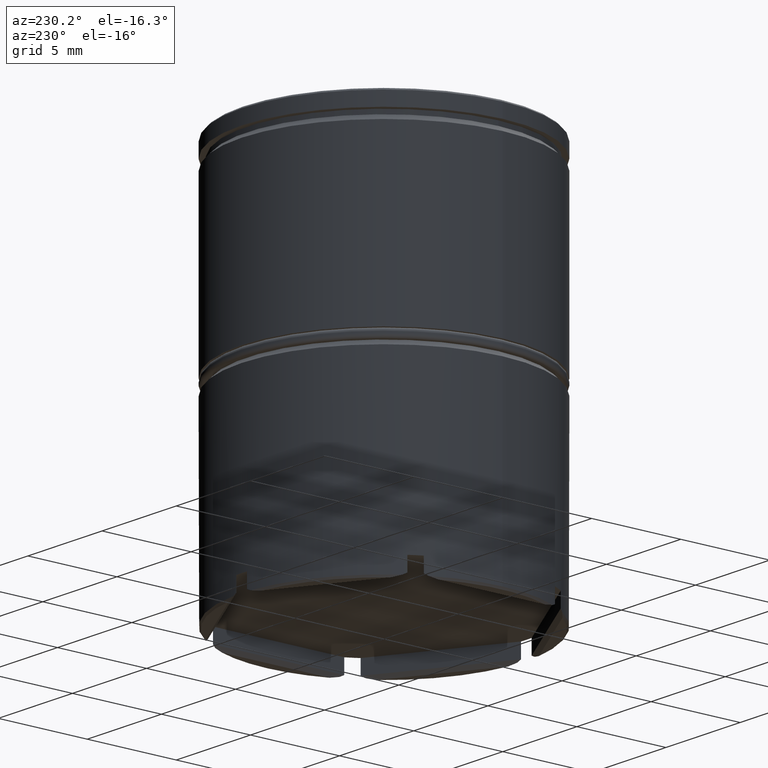
[diagram: clean part render]
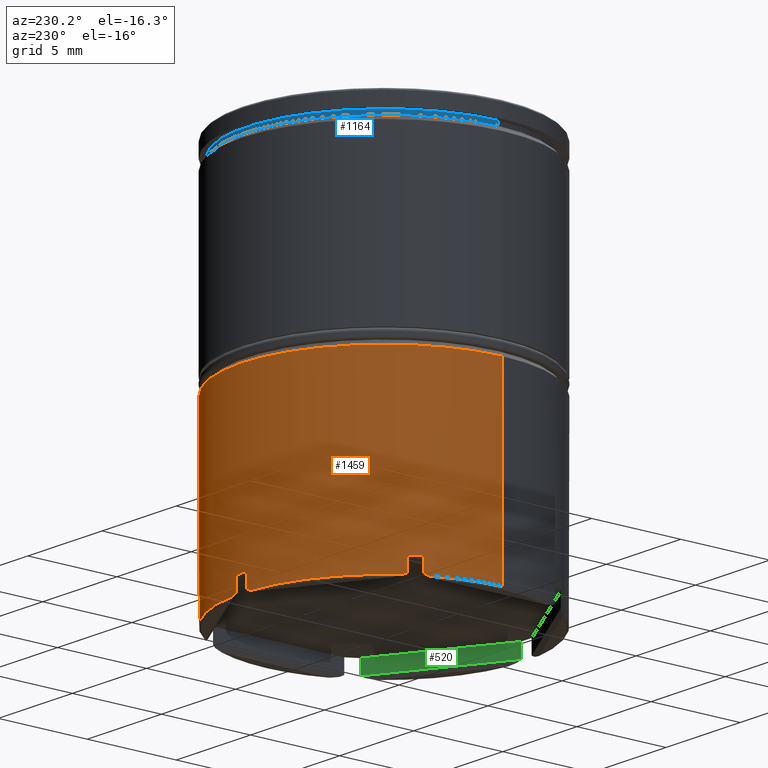
[diagram: same view with three faces highlighted in distinct colors, each labeled with its STEP entity id]
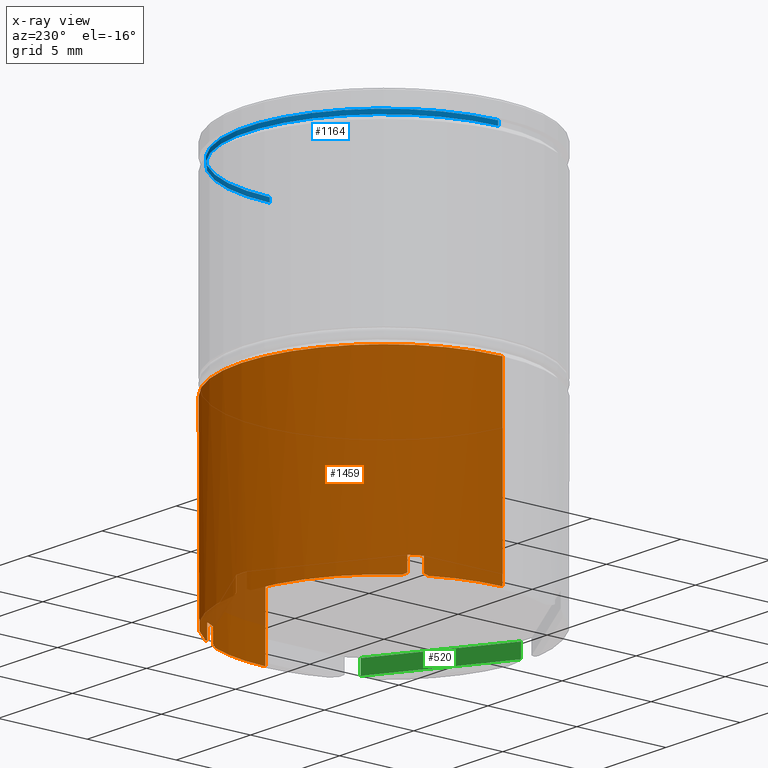
[diagram: x-ray of the same camera — body ghosted, the three highlighted faces saturated]
A machine part, auxiliary view with three faces highlighted in distinct colors.
The next image is the same camera in x-ray (body ghosted, the three faces saturated) — at least one of them is partly hidden behind the body in this view.
Their STEP definitions:

[orange] entity #1459 — the highlighted cylindrical surface (partial cylindrical patch) has radius 8 mm, axis along (-0, -0, 1).
#28 = CIRCLE ( 'NONE', #648, 8.000000000000000000 ) ;
#51 = CARTESIAN_POINT ( 'NONE',  ( -6.742569498068907485, 4.305549507752846061, -20.99999999999999645 ) ) ;
#72 = DIRECTION ( 'NONE',  ( -0.000000000000000000, -0.000000000000000000, 1.000000000000000000 ) ) ;
#73 = DIRECTION ( 'NONE',  ( 1.000000000000000000, 0.000000000000000000, 0.000000000000000000 ) ) ;
#82 = CARTESIAN_POINT ( 'NONE',  ( -7.200000000000001066, 3.487119154832536871, -21.90000000000000213 ) ) ;
#83 = EDGE_CURVE ( 'NONE', #893, #376, #141, .T. ) ;
#85 = LINE ( 'NONE', #187, #124 ) ;
#111 = VERTEX_POINT ( 'NONE', #855 ) ;
#124 = VECTOR ( 'NONE', #1248, 1000.000000000000000 ) ;
#131 = LINE ( 'NONE', #1238, #349 ) ;
#141 = LINE ( 'NONE', #1011, #778 ) ;
#156 = ORIENTED_EDGE ( 'NONE', *, *, #1562, .F. ) ;
#158 = CARTESIAN_POINT ( 'NONE',  ( -8.000000000000000000, 9.797174393178825657E-16, -21.90000000000000213 ) ) ;
#159 = EDGE_CURVE ( 'NONE', #1181, #376, #1311, .T. ) ;
#181 = CARTESIAN_POINT ( 'NONE',  ( 0.000000000000000000, 0.000000000000000000, -21.90000000000000213 ) ) ;
#187 = CARTESIAN_POINT ( 'NONE',  ( 6.742569498068909262, 4.305549507752845173, 0.000000000000000000 ) ) ;
#192 = CARTESIAN_POINT ( 'NONE',  ( -6.619933774108297975, 4.491823329831691858, -21.90000000000000213 ) ) ;
#196 = VERTEX_POINT ( 'NONE', #158 ) ;
#212 = AXIS2_PLACEMENT_3D ( 'NONE', #261, #1132, #770 ) ;
#222 = CARTESIAN_POINT ( 'NONE',  ( 6.619933774108291757, 4.491823329831700740, -21.90000000000000213 ) ) ;
#224 = CARTESIAN_POINT ( 'NONE',  ( 8.000000000000000000, 0.000000000000000000, -11.54999999999999893 ) ) ;
#232 = DIRECTION ( 'NONE',  ( -0.000000000000000000, -0.000000000000000000, 1.000000000000000000 ) ) ;
#235 = CARTESIAN_POINT ( 'NONE',  ( 0.3574305019310944909, 7.992011225986190404, -21.80000000000000071 ) ) ;
#238 = EDGE_CURVE ( 'NONE', #1265, #604, #1168, .T. ) ;
#257 = LINE ( 'NONE', #744, #916 ) ;
#261 = CARTESIAN_POINT ( 'NONE',  ( 0.000000000000000000, 0.000000000000000000, -20.99999999999999645 ) ) ;
#275 = CARTESIAN_POINT ( 'NONE',  ( -0.3574305019310984322, 7.992011225986190404, -21.80000000000000782 ) ) ;
#284 = DIRECTION ( 'NONE',  ( -0.000000000000000000, -0.000000000000000000, 1.000000000000000000 ) ) ;
#293 = VECTOR ( 'NONE', #903, 1000.000000000000000 ) ;
#311 = CARTESIAN_POINT ( 'NONE',  ( 7.134258504904175346, 3.620481001923024689, -21.83425850490418085 ) ) ;
#329 = EDGE_CURVE ( 'NONE', #1199, #1292, #1593, .T. ) ;
#345 = EDGE_CURVE ( 'NONE', #893, #432, #713, .T. ) ;
#349 = VECTOR ( 'NONE', #1493, 1000.000000000000000 ) ;
#361 = DIRECTION ( 'NONE',  ( 0.000000000000000000, 0.000000000000000000, -1.000000000000000000 ) ) ;
#376 = VERTEX_POINT ( 'NONE', #235 ) ;
#381 = CARTESIAN_POINT ( 'NONE',  ( -0.5800662258917000935, 7.978942484664226065, -21.90000000000000213 ) ) ;
#385 =( BOUNDED_CURVE ( )  B_SPLINE_CURVE ( 3, ( #192, #1582, #1608, #1483 ),
 .UNSPECIFIED., .F., .T. ) 
 B_SPLINE_CURVE_WITH_KNOTS ( ( 4, 4 ),
 ( 3.592619465386055033, 3.620497738464601323 ),
 .UNSPECIFIED. ) 
 CURVE ( )  GEOMETRIC_REPRESENTATION_ITEM ( )  RATIONAL_B_SPLINE_CURVE ( ( 1.000000000000000000, 0.9999352345395148278, 0.9999352345395148278, 1.000000000000000000 ) ) 
 REPRESENTATION_ITEM ( '' )  );
#393 = CARTESIAN_POINT ( 'NONE',  ( 0.5800662258917101965, 7.978942484664227841, -21.90000000000000213 ) ) ;
#395 =( BOUNDED_CURVE ( )  B_SPLINE_CURVE ( 3, ( #1559, #1428, #779, #659 ),
 .UNSPECIFIED., .F., .T. ) 
 B_SPLINE_CURVE_WITH_KNOTS ( ( 4, 4 ),
 ( 2.662687568714984465, 2.690565841793530755 ),
 .UNSPECIFIED. ) 
 CURVE ( )  GEOMETRIC_REPRESENTATION_ITEM ( )  RATIONAL_B_SPLINE_CURVE ( ( 1.000000000000000000, 0.9999352345395148278, 0.9999352345395148278, 1.000000000000000000 ) ) 
 REPRESENTATION_ITEM ( '' )  );
#401 = VECTOR ( 'NONE', #1442, 1000.000000000000000 ) ;
#410 = CARTESIAN_POINT ( 'NONE',  ( 0.000000000000000000, 0.000000000000000000, -11.54999999999999893 ) ) ;
#412 = ORIENTED_EDGE ( 'NONE', *, *, #1258, .T. ) ;
#432 = VERTEX_POINT ( 'NONE', #905 ) ;
#434 = DIRECTION ( 'NONE',  ( -0.000000000000000000, -0.000000000000000000, 1.000000000000000000 ) ) ;
#443 = LINE ( 'NONE', #960, #401 ) ;
#448 = CARTESIAN_POINT ( 'NONE',  ( 0.5800662258917101965, 7.978942484664227841, -21.90000000000000213 ) ) ;
#456 = ORIENTED_EDGE ( 'NONE', *, *, #1045, .F. ) ;
#459 = CARTESIAN_POINT ( 'NONE',  ( 0.000000000000000000, 0.000000000000000000, -20.99999999999999645 ) ) ;
#465 = CARTESIAN_POINT ( 'NONE',  ( 8.000000000000000000, 0.000000000000000000, -21.90000000000000213 ) ) ;
#489 = AXIS2_PLACEMENT_3D ( 'NONE', #1634, #232, #1275 ) ;
#493 = ORIENTED_EDGE ( 'NONE', *, *, #1313, .F. ) ;
#502 = ORIENTED_EDGE ( 'NONE', *, *, #238, .F. ) ;
#505 = EDGE_CURVE ( 'NONE', #766, #1068, #395, .T. ) ;
#519 = CARTESIAN_POINT ( 'NONE',  ( -6.742569498068905709, 4.305549507752851390, 0.000000000000000000 ) ) ;
#547 = CARTESIAN_POINT ( 'NONE',  ( 0.3574305019310944909, 7.992011225986190404, -21.80000000000000071 ) ) ;
#554 = ORIENTED_EDGE ( 'NONE', *, *, #906, .T. ) ;
#571 = ORIENTED_EDGE ( 'NONE', *, *, #1094, .T. ) ;
#572 =( BOUNDED_CURVE ( )  B_SPLINE_CURVE ( 3, ( #1215, #1476, #311, #1093 ),
 .UNSPECIFIED., .F., .T. ) 
 B_SPLINE_CURVE_WITH_KNOTS ( ( 4, 4 ),
 ( 3.592619465386055477, 3.620497738464601767 ),
 .UNSPECIFIED. ) 
 CURVE ( )  GEOMETRIC_REPRESENTATION_ITEM ( )  RATIONAL_B_SPLINE_CURVE ( ( 1.000000000000000000, 0.9999352345395148278, 0.9999352345395148278, 1.000000000000000000 ) ) 
 REPRESENTATION_ITEM ( '' )  );
#576 = CARTESIAN_POINT ( 'NONE',  ( -7.100000000000005862, 3.686461718233341678, -21.80000000000000782 ) ) ;
#592 = DIRECTION ( 'NONE',  ( -0.000000000000000000, -0.000000000000000000, 1.000000000000000000 ) ) ;
#604 = VERTEX_POINT ( 'NONE', #1226 ) ;
#606 = DIRECTION ( 'NONE',  ( -0.000000000000000000, -0.000000000000000000, 1.000000000000000000 ) ) ;
#633 = ORIENTED_EDGE ( 'NONE', *, *, #1184, .F. ) ;
#646 = CIRCLE ( 'NONE', #1050, 8.000000000000000000 ) ;
#647 = AXIS2_PLACEMENT_3D ( 'NONE', #410, #1551, #922 ) ;
#648 = AXIS2_PLACEMENT_3D ( 'NONE', #181, #700, #1438 ) ;
#659 = CARTESIAN_POINT ( 'NONE',  ( -7.200000000000001066, 3.487119154832536871, -21.90000000000000213 ) ) ;
#680 = EDGE_CURVE ( 'NONE', #1514, #1574, #646, .T. ) ;
#692 = CARTESIAN_POINT ( 'NONE',  ( 6.619933774108291757, 4.491823329831700740, -21.90000000000000213 ) ) ;
#697 = CARTESIAN_POINT ( 'NONE',  ( 0.000000000000000000, 0.000000000000000000, -20.99999999999999645 ) ) ;
#700 = DIRECTION ( 'NONE',  ( -0.000000000000000000, -0.000000000000000000, 1.000000000000000000 ) ) ;
#705 = DIRECTION ( 'NONE',  ( -1.000000000000000000, 3.552713678800500929E-15, 0.000000000000000000 ) ) ;
#709 = EDGE_CURVE ( 'NONE', #1068, #196, #1273, .T. ) ;
#710 = CARTESIAN_POINT ( 'NONE',  ( 6.742569498068909262, 4.305549507752845173, -20.99999999999999645 ) ) ;
#713 = CIRCLE ( 'NONE', #212, 8.000000000000000000 ) ;
#744 = CARTESIAN_POINT ( 'NONE',  ( 7.100000000000005862, 3.686461718233341678, 0.000000000000000000 ) ) ;
#755 = ORIENTED_EDGE ( 'NONE', *, *, #83, .F. ) ;
#759 = DIRECTION ( 'NONE',  ( -0.000000000000000000, -0.000000000000000000, 1.000000000000000000 ) ) ;
#765 = DIRECTION ( 'NONE',  ( 0.000000000000000000, 0.000000000000000000, -1.000000000000000000 ) ) ;
#766 = VERTEX_POINT ( 'NONE', #576 ) ;
#770 = DIRECTION ( 'NONE',  ( -1.000000000000000000, 1.154631945610162960E-14, 0.000000000000000000 ) ) ;
#778 = VECTOR ( 'NONE', #361, 1000.000000000000000 ) ;
#779 = CARTESIAN_POINT ( 'NONE',  ( -7.167593997226017422, 3.554029177006380991, -21.86759399722601671 ) ) ;
#816 = ORIENTED_EDGE ( 'NONE', *, *, #1468, .T. ) ;
#821 = ORIENTED_EDGE ( 'NONE', *, *, #329, .T. ) ;
#827 = CARTESIAN_POINT ( 'NONE',  ( 6.742569498068909262, 4.305549507752845173, -21.80000000000000071 ) ) ;
#831 = AXIS2_PLACEMENT_3D ( 'NONE', #1471, #284, #73 ) ;
#849 = DIRECTION ( 'NONE',  ( -1.000000000000000000, 0.000000000000000000, 0.000000000000000000 ) ) ;
#855 = CARTESIAN_POINT ( 'NONE',  ( -8.000000000000000000, 9.797174393178825657E-16, -11.54999999999999893 ) ) ;
#857 = CARTESIAN_POINT ( 'NONE',  ( 7.100000000000005862, 3.686461718233341678, -21.80000000000000782 ) ) ;
#860 = EDGE_CURVE ( 'NONE', #999, #1039, #1535, .T. ) ;
#866 = VERTEX_POINT ( 'NONE', #1487 ) ;
#893 = VERTEX_POINT ( 'NONE', #1244 ) ;
#902 = ORIENTED_EDGE ( 'NONE', *, *, #680, .T. ) ;
#903 = DIRECTION ( 'NONE',  ( 0.000000000000000000, 0.000000000000000000, -1.000000000000000000 ) ) ;
#905 = CARTESIAN_POINT ( 'NONE',  ( -0.3574305019310927700, 7.992011225986188627, -20.99999999999999645 ) ) ;
#906 = EDGE_CURVE ( 'NONE', #196, #111, #443, .T. ) ;
#908 = FACE_OUTER_BOUND ( 'NONE', #1157, .T. ) ;
#916 = VECTOR ( 'NONE', #765, 1000.000000000000000 ) ;
#922 = DIRECTION ( 'NONE',  ( 1.000000000000000000, 0.000000000000000000, 0.000000000000000000 ) ) ;
#932 = CARTESIAN_POINT ( 'NONE',  ( 0.000000000000000000, 0.000000000000000000, -21.90000000000000213 ) ) ;
#935 = EDGE_CURVE ( 'NONE', #111, #1321, #1435, .T. ) ;
#960 = CARTESIAN_POINT ( 'NONE',  ( -8.000000000000000000, 9.797174393178825657E-16, 0.000000000000000000 ) ) ;
#971 = VECTOR ( 'NONE', #72, 1000.000000000000000 ) ;
#985 = DIRECTION ( 'NONE',  ( -1.000000000000000000, 2.664535259100375697E-15, 0.000000000000000000 ) ) ;
#995 = ORIENTED_EDGE ( 'NONE', *, *, #709, .T. ) ;
#999 = VERTEX_POINT ( 'NONE', #1588 ) ;
#1011 = CARTESIAN_POINT ( 'NONE',  ( 0.3574305019310944909, 7.992011225986190404, 0.000000000000000000 ) ) ;
#1024 = EDGE_CURVE ( 'NONE', #866, #604, #385, .T. ) ;
#1031 = ORIENTED_EDGE ( 'NONE', *, *, #159, .T. ) ;
#1032 = CARTESIAN_POINT ( 'NONE',  ( -0.3574305019310984322, 7.992011225986190404, -21.80000000000000782 ) ) ;
#1033 = CIRCLE ( 'NONE', #489, 8.000000000000000000 ) ;
#1039 = VERTEX_POINT ( 'NONE', #692 ) ;
#1045 = EDGE_CURVE ( 'NONE', #1507, #1321, #1366, .T. ) ;
#1050 = AXIS2_PLACEMENT_3D ( 'NONE', #459, #1338, #849 ) ;
#1068 = VERTEX_POINT ( 'NONE', #82 ) ;
#1093 = CARTESIAN_POINT ( 'NONE',  ( 7.100000000000005862, 3.686461718233341678, -21.80000000000000782 ) ) ;
#1094 = EDGE_CURVE ( 'NONE', #1175, #1160, #572, .T. ) ;
#1096 = CARTESIAN_POINT ( 'NONE',  ( 0.000000000000000000, 0.000000000000000000, -21.90000000000000213 ) ) ;
#1105 = AXIS2_PLACEMENT_3D ( 'NONE', #932, #434, #1585 ) ;
#1125 = CARTESIAN_POINT ( 'NONE',  ( 6.661676551691631865, 4.430303897107399358, -21.86759399722602382 ) ) ;
#1130 = CARTESIAN_POINT ( 'NONE',  ( 7.200000000000000178, 3.487119154832540424, -21.90000000000000213 ) ) ;
#1132 = DIRECTION ( 'NONE',  ( -0.000000000000000000, -0.000000000000000000, 1.000000000000000000 ) ) ;
#1141 = EDGE_CURVE ( 'NONE', #1265, #1396, #1497, .T. ) ;
#1154 = CARTESIAN_POINT ( 'NONE',  ( 7.100000000000005862, 3.686461718233341678, -20.99999999999999645 ) ) ;
#1157 = EDGE_LOOP ( 'NONE', ( #995, #554, #1196, #456, #816, #571, #1625, #902, #493, #1488, #1236, #1031, #755, #1495, #156, #821, #412, #1246, #502, #1307, #633, #1554 ) ) ;
#1160 = VERTEX_POINT ( 'NONE', #857 ) ;
#1168 = LINE ( 'NONE', #519, #293 ) ;
#1175 = VERTEX_POINT ( 'NONE', #1130 ) ;
#1181 = VERTEX_POINT ( 'NONE', #448 ) ;
#1184 = EDGE_CURVE ( 'NONE', #766, #1396, #1482, .T. ) ;
#1193 = VECTOR ( 'NONE', #759, 1000.000000000000000 ) ;
#1196 = ORIENTED_EDGE ( 'NONE', *, *, #935, .T. ) ;
#1199 = VERTEX_POINT ( 'NONE', #275 ) ;
#1215 = CARTESIAN_POINT ( 'NONE',  ( 7.200000000000000178, 3.487119154832540424, -21.90000000000000213 ) ) ;
#1226 = CARTESIAN_POINT ( 'NONE',  ( -6.742569498068905709, 4.305549507752851390, -21.80000000000000782 ) ) ;
#1236 = ORIENTED_EDGE ( 'NONE', *, *, #1409, .T. ) ;
#1238 = CARTESIAN_POINT ( 'NONE',  ( -0.3574305019310984322, 7.992011225986190404, 0.000000000000000000 ) ) ;
#1244 = CARTESIAN_POINT ( 'NONE',  ( 0.3574305019310944909, 7.992011225986190404, -20.99999999999999645 ) ) ;
#1246 = ORIENTED_EDGE ( 'NONE', *, *, #1024, .T. ) ;
#1248 = DIRECTION ( 'NONE',  ( -0.000000000000000000, -0.000000000000000000, 1.000000000000000000 ) ) ;
#1251 = CARTESIAN_POINT ( 'NONE',  ( -7.100000000000005862, 3.686461718233341678, 0.000000000000000000 ) ) ;
#1258 = EDGE_CURVE ( 'NONE', #1292, #866, #1326, .T. ) ;
#1265 = VERTEX_POINT ( 'NONE', #51 ) ;
#1273 = CIRCLE ( 'NONE', #1469, 8.000000000000000000 ) ;
#1275 = DIRECTION ( 'NONE',  ( -1.000000000000000000, -1.776356839400250465E-15, 0.000000000000000000 ) ) ;
#1292 = VERTEX_POINT ( 'NONE', #1450 ) ;
#1307 = ORIENTED_EDGE ( 'NONE', *, *, #1141, .T. ) ;
#1311 =( BOUNDED_CURVE ( )  B_SPLINE_CURVE ( 3, ( #393, #1538, #1449, #547 ),
 .UNSPECIFIED., .F., .T. ) 
 B_SPLINE_CURVE_WITH_KNOTS ( ( 4, 4 ),
 ( 3.592619465386054145, 3.620497738464602211 ),
 .UNSPECIFIED. ) 
 CURVE ( )  GEOMETRIC_REPRESENTATION_ITEM ( )  RATIONAL_B_SPLINE_CURVE ( ( 1.000000000000000000, 0.9999352345395148278, 0.9999352345395148278, 1.000000000000000000 ) ) 
 REPRESENTATION_ITEM ( '' )  );
#1313 = EDGE_CURVE ( 'NONE', #999, #1574, #85, .T. ) ;
#1321 = VERTEX_POINT ( 'NONE', #224 ) ;
#1326 = CIRCLE ( 'NONE', #1105, 8.000000000000000000 ) ;
#1338 = DIRECTION ( 'NONE',  ( -0.000000000000000000, -0.000000000000000000, 1.000000000000000000 ) ) ;
#1352 = CYLINDRICAL_SURFACE ( 'NONE', #831, 8.000000000000000000 ) ;
#1366 = LINE ( 'NONE', #1470, #971 ) ;
#1385 = CARTESIAN_POINT ( 'NONE',  ( -7.100000000000005862, 3.686461718233341678, -20.99999999999999645 ) ) ;
#1396 = VERTEX_POINT ( 'NONE', #1385 ) ;
#1409 = EDGE_CURVE ( 'NONE', #1039, #1181, #1033, .T. ) ;
#1422 = EDGE_CURVE ( 'NONE', #1514, #1160, #257, .T. ) ;
#1428 = CARTESIAN_POINT ( 'NONE',  ( -7.134258504904176235, 3.620481001923023801, -21.83425850490418085 ) ) ;
#1435 = CIRCLE ( 'NONE', #647, 8.000000000000000000 ) ;
#1438 = DIRECTION ( 'NONE',  ( -1.000000000000000000, 0.000000000000000000, 0.000000000000000000 ) ) ;
#1442 = DIRECTION ( 'NONE',  ( -0.000000000000000000, -0.000000000000000000, 1.000000000000000000 ) ) ;
#1449 = CARTESIAN_POINT ( 'NONE',  ( 0.4317007308678149080, 7.988689603373718917, -21.83425850490418441 ) ) ;
#1450 = CARTESIAN_POINT ( 'NONE',  ( -0.5800662258917000935, 7.978942484664226065, -21.90000000000000213 ) ) ;
#1454 = AXIS2_PLACEMENT_3D ( 'NONE', #697, #606, #705 ) ;
#1459 = ADVANCED_FACE ( 'NONE', ( #908 ), #1352, .T. ) ;
#1468 = EDGE_CURVE ( 'NONE', #1507, #1175, #28, .T. ) ;
#1469 = AXIS2_PLACEMENT_3D ( 'NONE', #1096, #592, #985 ) ;
#1470 = CARTESIAN_POINT ( 'NONE',  ( 8.000000000000000000, 0.000000000000000000, 0.000000000000000000 ) ) ;
#1471 = CARTESIAN_POINT ( 'NONE',  ( 0.000000000000000000, 0.000000000000000000, 0.000000000000000000 ) ) ;
#1476 = CARTESIAN_POINT ( 'NONE',  ( 7.167593997226018310, 3.554029177006382767, -21.86759399722601671 ) ) ;
#1482 = LINE ( 'NONE', #1251, #1193 ) ;
#1483 = CARTESIAN_POINT ( 'NONE',  ( -6.742569498068905709, 4.305549507752851390, -21.80000000000000782 ) ) ;
#1487 = CARTESIAN_POINT ( 'NONE',  ( -6.619933774108297975, 4.491823329831691858, -21.90000000000000213 ) ) ;
#1488 = ORIENTED_EDGE ( 'NONE', *, *, #860, .T. ) ;
#1493 = DIRECTION ( 'NONE',  ( -0.000000000000000000, -0.000000000000000000, 1.000000000000000000 ) ) ;
#1495 = ORIENTED_EDGE ( 'NONE', *, *, #345, .T. ) ;
#1497 = CIRCLE ( 'NONE', #1454, 8.000000000000000000 ) ;
#1507 = VERTEX_POINT ( 'NONE', #465 ) ;
#1514 = VERTEX_POINT ( 'NONE', #1154 ) ;
#1534 = CARTESIAN_POINT ( 'NONE',  ( -0.5059174455343817822, 7.984333074113770579, -21.86759399722602026 ) ) ;
#1535 =( BOUNDED_CURVE ( )  B_SPLINE_CURVE ( 3, ( #827, #1605, #1125, #222 ),
 .UNSPECIFIED., .F., .T. ) 
 B_SPLINE_CURVE_WITH_KNOTS ( ( 4, 4 ),
 ( 2.662687568714984465, 2.690565841793532975 ),
 .UNSPECIFIED. ) 
 CURVE ( )  GEOMETRIC_REPRESENTATION_ITEM ( )  RATIONAL_B_SPLINE_CURVE ( ( 1.000000000000000000, 0.9999352345395148278, 0.9999352345395148278, 1.000000000000000000 ) ) 
 REPRESENTATION_ITEM ( '' )  );
#1538 = CARTESIAN_POINT ( 'NONE',  ( 0.5059174455343885546, 7.984333074113772355, -21.86759399722602026 ) ) ;
#1551 = DIRECTION ( 'NONE',  ( 0.000000000000000000, 0.000000000000000000, -1.000000000000000000 ) ) ;
#1554 = ORIENTED_EDGE ( 'NONE', *, *, #505, .T. ) ;
#1559 = CARTESIAN_POINT ( 'NONE',  ( -7.100000000000005862, 3.686461718233341678, -21.80000000000000782 ) ) ;
#1562 = EDGE_CURVE ( 'NONE', #1199, #432, #131, .T. ) ;
#1574 = VERTEX_POINT ( 'NONE', #710 ) ;
#1582 = CARTESIAN_POINT ( 'NONE',  ( -6.661676551691632753, 4.430303897107394029, -21.86759399722601671 ) ) ;
#1585 = DIRECTION ( 'NONE',  ( -1.000000000000000000, -1.776356839400250465E-15, 0.000000000000000000 ) ) ;
#1588 = CARTESIAN_POINT ( 'NONE',  ( 6.742569498068909262, 4.305549507752845173, -21.80000000000000071 ) ) ;
#1593 =( BOUNDED_CURVE ( )  B_SPLINE_CURVE ( 3, ( #1032, #1615, #1534, #381 ),
 .UNSPECIFIED., .F., .T. ) 
 B_SPLINE_CURVE_WITH_KNOTS ( ( 4, 4 ),
 ( 2.662687568714985353, 2.690565841793531199 ),
 .UNSPECIFIED. ) 
 CURVE ( )  GEOMETRIC_REPRESENTATION_ITEM ( )  RATIONAL_B_SPLINE_CURVE ( ( 1.000000000000000000, 0.9999352345395148278, 0.9999352345395148278, 1.000000000000000000 ) ) 
 REPRESENTATION_ITEM ( '' )  );
#1605 = CARTESIAN_POINT ( 'NONE',  ( 6.702557774036362659, 4.368208601450695561, -21.83425850490418441 ) ) ;
#1608 = CARTESIAN_POINT ( 'NONE',  ( -6.702557774036359994, 4.368208601450696449, -21.83425850490418441 ) ) ;
#1615 = CARTESIAN_POINT ( 'NONE',  ( -0.4317007308678146305, 7.988689603373715364, -21.83425850490418441 ) ) ;
#1625 = ORIENTED_EDGE ( 'NONE', *, *, #1422, .F. ) ;
#1634 = CARTESIAN_POINT ( 'NONE',  ( 0.000000000000000000, 0.000000000000000000, -21.90000000000000213 ) ) ;

[blue] entity #1164 — the highlighted cylindrical surface (partial cylindrical patch) has radius 7.7 mm, axis along (-0, -0, 1).
#20 = LINE ( 'NONE', #1612, #1370 ) ;
#69 = DIRECTION ( 'NONE',  ( -0.000000000000000000, -0.000000000000000000, 1.000000000000000000 ) ) ;
#107 = VERTEX_POINT ( 'NONE', #509 ) ;
#108 = EDGE_LOOP ( 'NONE', ( #1618, #704, #292, #147 ) ) ;
#147 = ORIENTED_EDGE ( 'NONE', *, *, #656, .F. ) ;
#217 = AXIS2_PLACEMENT_3D ( 'NONE', #324, #837, #481 ) ;
#244 = CARTESIAN_POINT ( 'NONE',  ( 7.700000000000000178, 0.000000000000000000, -1.125000000000000222 ) ) ;
#255 = EDGE_CURVE ( 'NONE', #330, #107, #1025, .T. ) ;
#292 = ORIENTED_EDGE ( 'NONE', *, *, #551, .F. ) ;
#299 = VECTOR ( 'NONE', #901, 1000.000000000000000 ) ;
#304 = DIRECTION ( 'NONE',  ( 1.000000000000000000, 0.000000000000000000, 0.000000000000000000 ) ) ;
#324 = CARTESIAN_POINT ( 'NONE',  ( 0.000000000000000000, 0.000000000000000000, 0.000000000000000000 ) ) ;
#330 = VERTEX_POINT ( 'NONE', #244 ) ;
#427 = CARTESIAN_POINT ( 'NONE',  ( 0.000000000000000000, 0.000000000000000000, -1.125000000000000222 ) ) ;
#469 = VERTEX_POINT ( 'NONE', #1295 ) ;
#481 = DIRECTION ( 'NONE',  ( 1.000000000000000000, 0.000000000000000000, 0.000000000000000000 ) ) ;
#491 = CARTESIAN_POINT ( 'NONE',  ( -7.700000000000000178, 9.429780353434619030E-16, 0.000000000000000000 ) ) ;
#497 = DIRECTION ( 'NONE',  ( -0.000000000000000000, -0.000000000000000000, 1.000000000000000000 ) ) ;
#509 = CARTESIAN_POINT ( 'NONE',  ( -7.700000000000000178, 9.429780353434619030E-16, -1.125000000000000222 ) ) ;
#551 = EDGE_CURVE ( 'NONE', #1272, #469, #1452, .T. ) ;
#641 = LINE ( 'NONE', #491, #299 ) ;
#656 = EDGE_CURVE ( 'NONE', #330, #1272, #20, .T. ) ;
#704 = ORIENTED_EDGE ( 'NONE', *, *, #1429, .T. ) ;
#745 = AXIS2_PLACEMENT_3D ( 'NONE', #427, #943, #304 ) ;
#837 = DIRECTION ( 'NONE',  ( -0.000000000000000000, -0.000000000000000000, 1.000000000000000000 ) ) ;
#901 = DIRECTION ( 'NONE',  ( -0.000000000000000000, -0.000000000000000000, 1.000000000000000000 ) ) ;
#943 = DIRECTION ( 'NONE',  ( -0.000000000000000000, -0.000000000000000000, 1.000000000000000000 ) ) ;
#951 = CARTESIAN_POINT ( 'NONE',  ( 7.700000000000000178, 0.000000000000000000, -0.8749999999999998890 ) ) ;
#975 = CYLINDRICAL_SURFACE ( 'NONE', #217, 7.700000000000000178 ) ;
#1025 = CIRCLE ( 'NONE', #745, 7.700000000000000178 ) ;
#1099 = CARTESIAN_POINT ( 'NONE',  ( 0.000000000000000000, 0.000000000000000000, -0.8749999999999998890 ) ) ;
#1109 = DIRECTION ( 'NONE',  ( 1.000000000000000000, 0.000000000000000000, 0.000000000000000000 ) ) ;
#1164 = ADVANCED_FACE ( 'NONE', ( #1267 ), #975, .T. ) ;
#1267 = FACE_OUTER_BOUND ( 'NONE', #108, .T. ) ;
#1272 = VERTEX_POINT ( 'NONE', #951 ) ;
#1295 = CARTESIAN_POINT ( 'NONE',  ( -7.700000000000000178, 9.429780353434619030E-16, -0.8749999999999998890 ) ) ;
#1370 = VECTOR ( 'NONE', #497, 1000.000000000000000 ) ;
#1429 = EDGE_CURVE ( 'NONE', #107, #469, #641, .T. ) ;
#1452 = CIRCLE ( 'NONE', #1553, 7.700000000000000178 ) ;
#1553 = AXIS2_PLACEMENT_3D ( 'NONE', #1099, #69, #1109 ) ;
#1612 = CARTESIAN_POINT ( 'NONE',  ( 7.700000000000000178, 0.000000000000000000, 0.000000000000000000 ) ) ;
#1618 = ORIENTED_EDGE ( 'NONE', *, *, #255, .T. ) ;

[green] entity #520 — the highlighted planar face has unit normal (0.5, -0.866, 0).
#8 = VERTEX_POINT ( 'NONE', #946 ) ;
#10 = DIRECTION ( 'NONE',  ( -0.8660254037844387076, -0.4999999999999998335, 0.000000000000000000 ) ) ;
#40 = CARTESIAN_POINT ( 'NONE',  ( 0.3574305019310988207, -7.992011225986190404, -21.80000000000000426 ) ) ;
#45 = VECTOR ( 'NONE', #494, 1000.000000000000114 ) ;
#89 = LINE ( 'NONE', #201, #829 ) ;
#134 = EDGE_LOOP ( 'NONE', ( #1333, #1632, #681, #490 ) ) ;
#173 = CARTESIAN_POINT ( 'NONE',  ( 6.742569498068905709, -4.305549507752852278, -21.80000000000000426 ) ) ;
#201 = CARTESIAN_POINT ( 'NONE',  ( 0.3574305019310988207, -7.992011225986190404, 0.000000000000000000 ) ) ;
#294 = AXIS2_PLACEMENT_3D ( 'NONE', #1192, #664, #542 ) ;
#317 = VECTOR ( 'NONE', #1217, 1000.000000000000000 ) ;
#335 = CARTESIAN_POINT ( 'NONE',  ( 7.100000000000006750, -4.099186911246347265, -20.99999999999999645 ) ) ;
#342 = DIRECTION ( 'NONE',  ( -0.000000000000000000, -0.000000000000000000, 1.000000000000000000 ) ) ;
#375 = VECTOR ( 'NONE', #10, 1000.000000000000114 ) ;
#409 = FACE_OUTER_BOUND ( 'NONE', #134, .T. ) ;
#460 = VERTEX_POINT ( 'NONE', #938 ) ;
#490 = ORIENTED_EDGE ( 'NONE', *, *, #1550, .F. ) ;
#494 = DIRECTION ( 'NONE',  ( -0.8660254037844387076, -0.4999999999999998890, 0.000000000000000000 ) ) ;
#512 = VERTEX_POINT ( 'NONE', #40 ) ;
#520 = ADVANCED_FACE ( 'NONE', ( #409 ), #792, .F. ) ;
#542 = DIRECTION ( 'NONE',  ( 0.8660254037844387076, 0.4999999999999998335, 0.000000000000000000 ) ) ;
#663 = VERTEX_POINT ( 'NONE', #173 ) ;
#664 = DIRECTION ( 'NONE',  ( 0.4999999999999998335, -0.8660254037844387076, 0.000000000000000000 ) ) ;
#681 = ORIENTED_EDGE ( 'NONE', *, *, #1115, .T. ) ;
#685 = LINE ( 'NONE', #1472, #317 ) ;
#690 = EDGE_CURVE ( 'NONE', #460, #663, #685, .T. ) ;
#792 = PLANE ( 'NONE',  #294 ) ;
#829 = VECTOR ( 'NONE', #342, 1000.000000000000000 ) ;
#938 = CARTESIAN_POINT ( 'NONE',  ( 6.742569498068905709, -4.305549507752848726, -20.99999999999999645 ) ) ;
#946 = CARTESIAN_POINT ( 'NONE',  ( 0.3574305019310975440, -7.992011225986188627, -20.99999999999999645 ) ) ;
#1115 = EDGE_CURVE ( 'NONE', #512, #8, #89, .T. ) ;
#1192 = CARTESIAN_POINT ( 'NONE',  ( 7.100000000000006750, -4.099186911246347265, -20.99999999999999645 ) ) ;
#1217 = DIRECTION ( 'NONE',  ( 0.000000000000000000, 0.000000000000000000, -1.000000000000000000 ) ) ;
#1221 = EDGE_CURVE ( 'NONE', #663, #512, #1531, .T. ) ;
#1333 = ORIENTED_EDGE ( 'NONE', *, *, #690, .T. ) ;
#1398 = CARTESIAN_POINT ( 'NONE',  ( 0.5500000000000012657, -7.880831174438397646, -21.80000000000000426 ) ) ;
#1401 = LINE ( 'NONE', #335, #45 ) ;
#1472 = CARTESIAN_POINT ( 'NONE',  ( 6.742569498068905709, -4.305549507752852278, 0.000000000000000000 ) ) ;
#1531 = LINE ( 'NONE', #1398, #375 ) ;
#1550 = EDGE_CURVE ( 'NONE', #460, #8, #1401, .T. ) ;
#1632 = ORIENTED_EDGE ( 'NONE', *, *, #1221, .T. ) ;